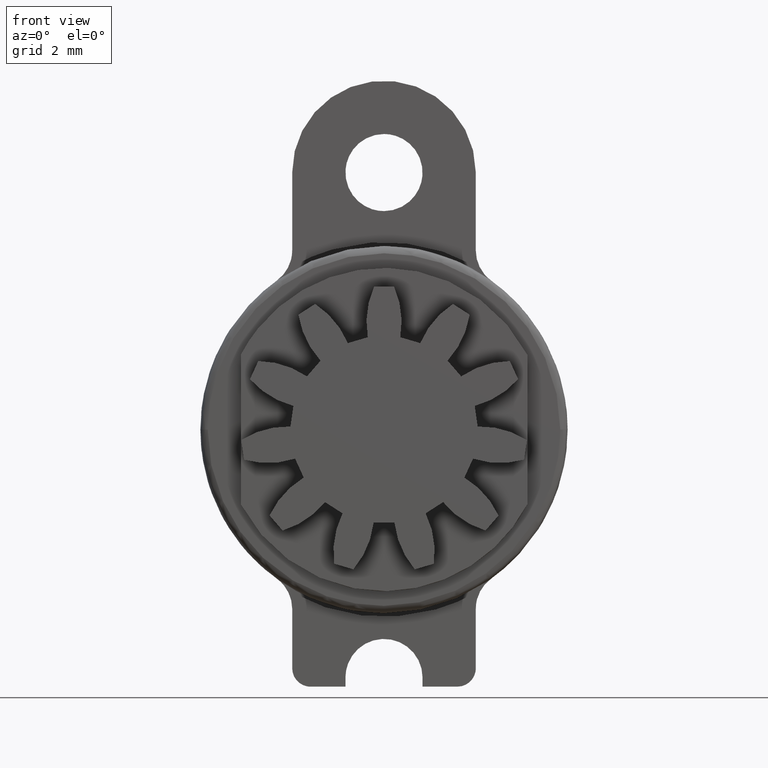
[diagram: clean part render]
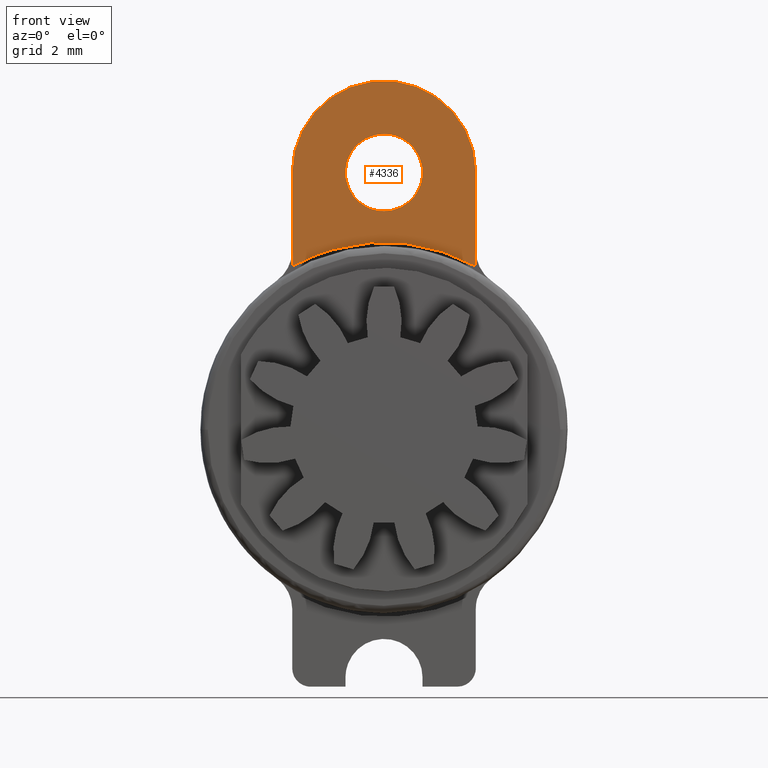
[diagram: same view with one face highlighted and labeled with its STEP entity id]
A machine part, front view. The second image highlights one B-rep face of the part: STEP entity #4336.
In plain terms, the highlighted face is a freeform B-spline surface patch.
Its self-contained STEP definition (entity closure, byte-faithful):
#3058=CARTESIAN_POINT('',(7.105427E-015,-1.499999999999946,5.950000000000000));
#3059=VERTEX_POINT('',#3058);
#3060=CARTESIAN_POINT('',(1.046763200419293,-1.499999999999946,6.917617949479427));
#3061=VERTEX_POINT('',#3060);
#3062=CARTESIAN_POINT('',(7.105427E-015,-1.499999999999946,5.950000000000000));
#3063=CARTESIAN_POINT('',(0.970610016235232,-1.499999999999945,5.950000000000000));
#3064=CARTESIAN_POINT('',(1.046763200419293,-1.499999999999946,6.917617949479428));
#3072=(BOUNDED_CURVE()B_SPLINE_CURVE(2,(#3062,#3063,#3064),.UNSPECIFIED.,.F.,.U.)B_SPLINE_CURVE_WITH_KNOTS((3,3),(0.0,0.236331300631729),.UNSPECIFIED.)CURVE()GEOMETRIC_REPRESENTATION_ITEM()RATIONAL_B_SPLINE_CURVE((1.0,0.723120658606412,0.969723356169650))REPRESENTATION_ITEM(''));
#3073=EDGE_CURVE('',#3059,#3061,#3072,.T.);
#3114=CARTESIAN_POINT('',(-1.046763200419278,-1.499999999999946,7.082382050520574));
#3115=VERTEX_POINT('',#3114);
#3121=CARTESIAN_POINT('',(-1.046763200419279,-1.499999999999946,7.082382050520575));
#3122=CARTESIAN_POINT('',(-1.049999999999993,-1.499999999999947,7.041254612361237));
#3123=CARTESIAN_POINT('',(-1.049999999999993,-1.499999999999946,7.0));
#3124=CARTESIAN_POINT('',(-1.049999999999993,-1.499999999999946,5.950000000000000));
#3125=CARTESIAN_POINT('',(7.105427E-015,-1.499999999999946,5.950000000000000));
#3133=(BOUNDED_CURVE()B_SPLINE_CURVE(2,(#3121,#3122,#3123,#3124,#3125),.UNSPECIFIED.,.F.,.U.)B_SPLINE_CURVE_WITH_KNOTS((3,2,3),(0.736331300631729,0.750000000000000,1.0),.UNSPECIFIED.)CURVE()GEOMETRIC_REPRESENTATION_ITEM()RATIONAL_B_SPLINE_CURVE((0.969723356169650,0.983986122580135,1.0,0.707106781186548,1.0))REPRESENTATION_ITEM(''));
#3134=EDGE_CURVE('',#3115,#3059,#3133,.T.);
#3157=CARTESIAN_POINT('',(7.105427E-015,-1.499999999999946,8.050000000000001));
#3158=VERTEX_POINT('',#3157);
#3159=CARTESIAN_POINT('',(1.046763200419293,-1.499999999999946,6.917617949479428));
#3160=CARTESIAN_POINT('',(1.050000000000007,-1.499999999999946,6.958745387638765));
#3161=CARTESIAN_POINT('',(1.050000000000007,-1.499999999999946,7.0));
#3162=CARTESIAN_POINT('',(1.050000000000007,-1.499999999999946,8.050000000000001));
#3163=CARTESIAN_POINT('',(7.105427E-015,-1.499999999999946,8.050000000000001));
#3171=(BOUNDED_CURVE()B_SPLINE_CURVE(2,(#3159,#3160,#3161,#3162,#3163),.UNSPECIFIED.,.F.,.U.)B_SPLINE_CURVE_WITH_KNOTS((3,2,3),(0.236331300631729,0.250000000000000,0.500000000000000),.UNSPECIFIED.)CURVE()GEOMETRIC_REPRESENTATION_ITEM()RATIONAL_B_SPLINE_CURVE((0.969723356169650,0.983986122580135,1.0,0.707106781186548,1.0))REPRESENTATION_ITEM(''));
#3172=EDGE_CURVE('',#3061,#3158,#3171,.T.);
#3174=CARTESIAN_POINT('',(7.105427E-015,-1.499999999999946,8.050000000000001));
#3175=CARTESIAN_POINT('',(-0.970610016235216,-1.499999999999946,8.050000000000001));
#3176=CARTESIAN_POINT('',(-1.046763200419279,-1.499999999999946,7.082382050520574));
#3184=(BOUNDED_CURVE()B_SPLINE_CURVE(2,(#3174,#3175,#3176),.UNSPECIFIED.,.F.,.U.)B_SPLINE_CURVE_WITH_KNOTS((3,3),(0.500000000000000,0.736331300631729),.UNSPECIFIED.)CURVE()GEOMETRIC_REPRESENTATION_ITEM()RATIONAL_B_SPLINE_CURVE((1.0,0.723120658606413,0.969723356169650))REPRESENTATION_ITEM(''));
#3185=EDGE_CURVE('',#3158,#3115,#3184,.T.);
#4253=CARTESIAN_POINT('',(-2.500000000000000,-1.499999999999946,7.0));
#4254=VERTEX_POINT('',#4253);
#4260=CARTESIAN_POINT('',(2.500000000000000,-1.499999999999946,7.0));
#4261=VERTEX_POINT('',#4260);
#4262=CARTESIAN_POINT('',(2.500000000000000,-1.499999999999946,7.0));
#4263=CARTESIAN_POINT('',(2.500011220521805,-1.499999999999946,7.153395486605207));
#4264=CARTESIAN_POINT('',(2.468861171948207,-1.499999999999946,7.490868222533343));
#4265=CARTESIAN_POINT('',(2.322530689166657,-1.499999999999946,7.973327746665620));
#4266=CARTESIAN_POINT('',(2.089623589600291,-1.499999999999953,8.396433448909850));
#4267=CARTESIAN_POINT('',(1.828001649879622,-1.499999999999935,8.719221369516534));
#4268=CARTESIAN_POINT('',(1.528789573254145,-1.499999999999939,8.992101881951019));
#4269=CARTESIAN_POINT('',(1.214577674777048,-1.499999999999942,9.196513246241238));
#4270=CARTESIAN_POINT('',(0.822247448650128,-1.499999999999949,9.373317645529815));
#4271=CARTESIAN_POINT('',(0.394717839461876,-1.499999999999944,9.486016373107105));
#4272=CARTESIAN_POINT('',(-0.051599425603755,-1.499999999999949,9.510672588268745));
#4273=CARTESIAN_POINT('',(-0.423485297676830,-1.499999999999940,9.470566117640901));
#4274=CARTESIAN_POINT('',(-0.772391107952668,-1.499999999999977,9.387722031897116));
#4275=CARTESIAN_POINT('',(-1.124681587352860,-1.499999999999865,9.245585830390601));
#4276=CARTESIAN_POINT('',(-1.461500337762405,-1.500000000000086,9.039458864289429));
#4277=CARTESIAN_POINT('',(-1.752496016546643,-1.499999999999699,8.796128407383813));
#4278=CARTESIAN_POINT('',(-2.014140886632810,-1.500000000000077,8.500241494198297));
#4279=CARTESIAN_POINT('',(-2.223505031200106,-1.499999999999894,8.165079094088785));
#4280=CARTESIAN_POINT('',(-2.383919278248667,-1.500000000000030,7.787672225614102));
#4281=CARTESIAN_POINT('',(-2.478783237874608,-1.499999999999765,7.403945054501261));
#4282=CARTESIAN_POINT('',(-2.500006539630961,-1.499999999999990,7.127831514868078));
#4283=CARTESIAN_POINT('',(-2.500000000000000,-1.499999999999946,7.0));
#4284=B_SPLINE_CURVE_WITH_KNOTS('',3,(#4262,#4263,#4264,#4265,#4266,#4267,#4268,#4269,#4270,#4271,#4272,#4273,#4274,#4275,#4276,#4277,#4278,#4279,#4280,#4281,#4282,#4283),.UNSPECIFIED.,.F.,.U.,(4,1,1,1,1,1,1,1,1,1,1,1,1,1,1,1,1,1,1,4),(0.000000038959452,0.460187069990953,1.012421778684436,1.503301393173516,1.902139470392530,2.254956188688503,2.715152301823396,3.021952527966294,3.543503477473808,4.034368166220026,4.356501801071015,4.663299047989472,5.108163280516316,5.491658049031761,5.844476025048673,6.243312299253508,6.672828891632230,7.025652359075371,7.470498894259809,7.853993954596673),.UNSPECIFIED.);
#4285=EDGE_CURVE('',#4261,#4254,#4284,.T.);
#4295=CARTESIAN_POINT('',(-2.749749990309030,-1.500000000000000,4.192736010576915));
#4296=CARTESIAN_POINT('',(2.749750124419481,-1.500000000000000,4.192736010576915));
#4297=CARTESIAN_POINT('',(-2.749749990309030,-1.500000000000000,9.752486279181332));
#4298=CARTESIAN_POINT('',(2.749750124419481,-1.500000000000000,9.752486279181332));
#4299=B_SPLINE_SURFACE_WITH_KNOTS('',1,1,((#4295,#4297),(#4296,#4298)),.UNSPECIFIED.,.F.,.F.,.U.,(2,2),(2,2),(0.0,5.499500114728511),(0.0,5.559750268604417),.UNSPECIFIED.);
#4300=CARTESIAN_POINT('',(2.500000000000000,-1.499999999999946,4.445222154178580));
#4301=VERTEX_POINT('',#4300);
#4302=CARTESIAN_POINT('',(2.500000000000000,-1.499999999999946,4.445222154178580));
#4303=CARTESIAN_POINT('',(2.500000000000000,-1.499999999999946,7.0));
#4304=QUASI_UNIFORM_CURVE('',1,(#4302,#4303),.UNSPECIFIED.,.F.,.U.);
#4305=EDGE_CURVE('',#4301,#4261,#4304,.T.);
#4306=ORIENTED_EDGE('',*,*,#4305,.T.);
#4307=ORIENTED_EDGE('',*,*,#4285,.T.);
#4308=CARTESIAN_POINT('',(-2.500000000000000,-1.499999999999946,4.445222154178555));
#4309=VERTEX_POINT('',#4308);
#4310=CARTESIAN_POINT('',(-2.500000000000000,-1.499999999999946,7.0));
#4311=CARTESIAN_POINT('',(-2.500000000000000,-1.499999999999946,4.445222154178555));
#4312=QUASI_UNIFORM_CURVE('',1,(#4310,#4311),.UNSPECIFIED.,.F.,.U.);
#4313=EDGE_CURVE('',#4254,#4309,#4312,.T.);
#4314=ORIENTED_EDGE('',*,*,#4313,.T.);
#4315=CARTESIAN_POINT('',(2.499999999999996,-1.499999999999946,4.445222154178572));
#4316=CARTESIAN_POINT('',(-6.671746E-015,-1.499999999999946,5.851226125009350));
#4317=CARTESIAN_POINT('',(-2.500000000000009,-1.499999999999946,4.445222154178573));
#4325=(BOUNDED_CURVE()B_SPLINE_CURVE(2,(#4315,#4316,#4317),.UNSPECIFIED.,.F.,.U.)CURVE()GEOMETRIC_REPRESENTATION_ITEM()QUASI_UNIFORM_CURVE()RATIONAL_B_SPLINE_CURVE((1.0,0.871612187093838,1.0))REPRESENTATION_ITEM(''));
#4326=EDGE_CURVE('',#4301,#4309,#4325,.T.);
#4327=ORIENTED_EDGE('',*,*,#4326,.F.);
#4328=EDGE_LOOP('',(#4306,#4307,#4314,#4327));
#4329=FACE_OUTER_BOUND('',#4328,.T.);
#4330=ORIENTED_EDGE('',*,*,#3185,.F.);
#4331=ORIENTED_EDGE('',*,*,#3172,.F.);
#4332=ORIENTED_EDGE('',*,*,#3073,.F.);
#4333=ORIENTED_EDGE('',*,*,#3134,.F.);
#4334=EDGE_LOOP('',(#4330,#4331,#4332,#4333));
#4335=FACE_BOUND('',#4334,.T.);
#4336=ADVANCED_FACE('',(#4329,#4335),#4299,.T.);